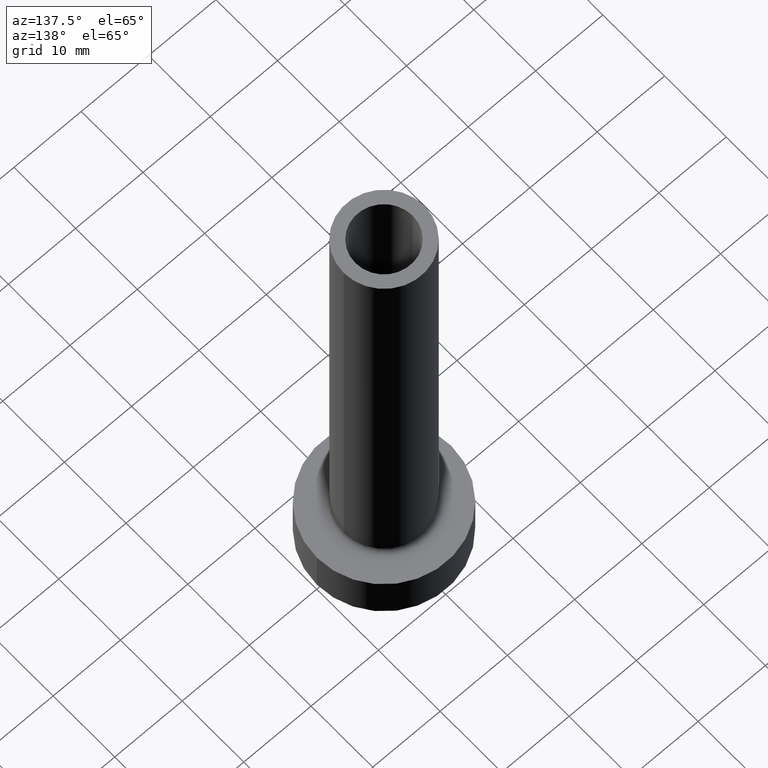
[diagram: clean part render]
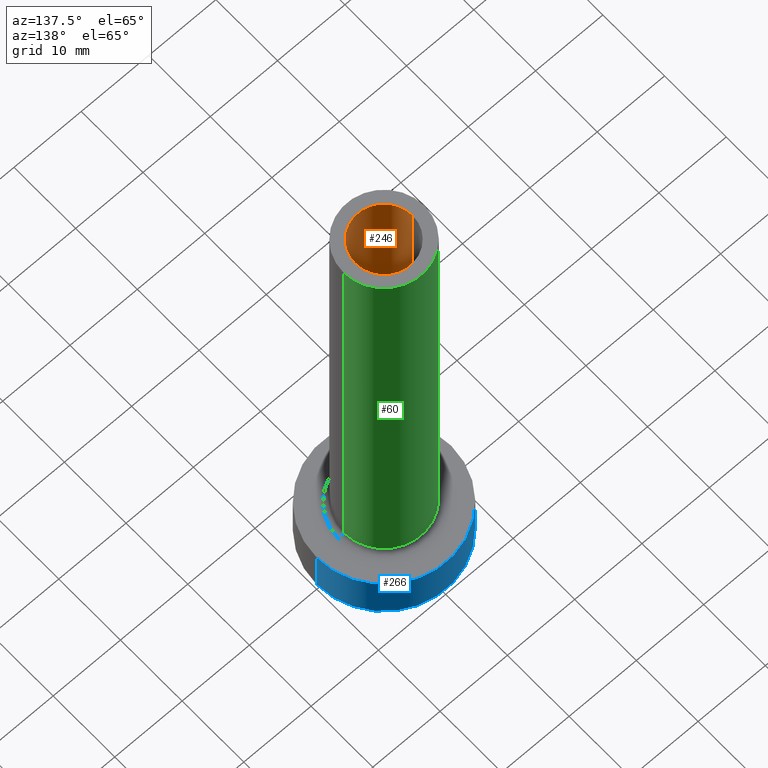
[diagram: same view with three faces highlighted in distinct colors, each labeled with its STEP entity id]
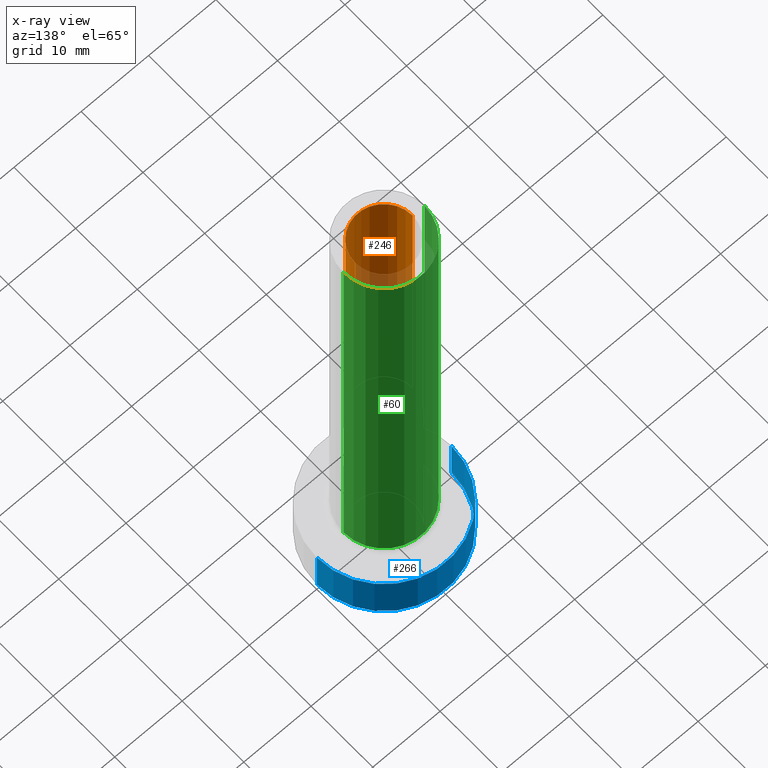
[diagram: x-ray of the same camera — body ghosted, the three highlighted faces saturated]
A machine part, auxiliary view with three faces highlighted in distinct colors.
The next image is the same camera in x-ray (body ghosted, the three faces saturated) — at least one of them is partly hidden behind the body in this view.
Their STEP definitions:

[orange] entity #246 — the highlighted cylindrical surface (partial cylindrical patch) has radius 4.25 mm, axis along (0, 0, -1).
#3 = EDGE_LOOP ( 'NONE', ( #178, #320, #31, #36 ) ) ;
#14 = DIRECTION ( 'NONE',  ( 0.000000000000000000, 0.000000000000000000, -1.000000000000000000 ) ) ;
#21 = CARTESIAN_POINT ( 'NONE',  ( 0.000000000000000000, 0.000000000000000000, 75.00000000000001421 ) ) ;
#31 = ORIENTED_EDGE ( 'NONE', *, *, #69, .F. ) ;
#36 = ORIENTED_EDGE ( 'NONE', *, *, #452, .F. ) ;
#48 = CARTESIAN_POINT ( 'NONE',  ( 4.250000000000000000, 5.204748896376249713E-16, 30.00000000000001421 ) ) ;
#51 = LINE ( 'NONE', #196, #449 ) ;
#62 = DIRECTION ( 'NONE',  ( -1.000000000000000000, 0.000000000000000000, 0.000000000000000000 ) ) ;
#65 = AXIS2_PLACEMENT_3D ( 'NONE', #202, #419, #381 ) ;
#69 = EDGE_CURVE ( 'NONE', #141, #186, #206, .T. ) ;
#94 = CYLINDRICAL_SURFACE ( 'NONE', #277, 4.250000000000000000 ) ;
#101 = VECTOR ( 'NONE', #211, 1000.000000000000000 ) ;
#117 = CARTESIAN_POINT ( 'NONE',  ( 4.250000000000000000, 5.204748896376249713E-16, 75.00000000000001421 ) ) ;
#120 = VERTEX_POINT ( 'NONE', #375 ) ;
#141 = VERTEX_POINT ( 'NONE', #226 ) ;
#163 = DIRECTION ( 'NONE',  ( 0.000000000000000000, 0.000000000000000000, -1.000000000000000000 ) ) ;
#167 = DIRECTION ( 'NONE',  ( 1.000000000000000000, 0.000000000000000000, 0.000000000000000000 ) ) ;
#177 = EDGE_CURVE ( 'NONE', #262, #186, #51, .T. ) ;
#178 = ORIENTED_EDGE ( 'NONE', *, *, #242, .T. ) ;
#186 = VERTEX_POINT ( 'NONE', #48 ) ;
#196 = CARTESIAN_POINT ( 'NONE',  ( 4.250000000000000000, 5.204748896376249713E-16, 75.00000000000001421 ) ) ;
#199 = CARTESIAN_POINT ( 'NONE',  ( 0.000000000000000000, 0.000000000000000000, 75.00000000000001421 ) ) ;
#201 = AXIS2_PLACEMENT_3D ( 'NONE', #21, #280, #167 ) ;
#202 = CARTESIAN_POINT ( 'NONE',  ( 0.000000000000000000, 0.000000000000000000, 30.00000000000001421 ) ) ;
#206 = CIRCLE ( 'NONE', #65, 4.250000000000000000 ) ;
#211 = DIRECTION ( 'NONE',  ( 0.000000000000000000, 0.000000000000000000, -1.000000000000000000 ) ) ;
#226 = CARTESIAN_POINT ( 'NONE',  ( -4.250000000000000000, 0.000000000000000000, 30.00000000000001421 ) ) ;
#242 = EDGE_CURVE ( 'NONE', #120, #262, #422, .T. ) ;
#246 = ADVANCED_FACE ( 'NONE', ( #380 ), #94, .F. ) ;
#262 = VERTEX_POINT ( 'NONE', #117 ) ;
#277 = AXIS2_PLACEMENT_3D ( 'NONE', #199, #14, #62 ) ;
#280 = DIRECTION ( 'NONE',  ( 0.000000000000000000, 0.000000000000000000, 1.000000000000000000 ) ) ;
#320 = ORIENTED_EDGE ( 'NONE', *, *, #177, .T. ) ;
#375 = CARTESIAN_POINT ( 'NONE',  ( -4.250000000000000000, 0.000000000000000000, 75.00000000000001421 ) ) ;
#380 = FACE_OUTER_BOUND ( 'NONE', #3, .T. ) ;
#381 = DIRECTION ( 'NONE',  ( 1.000000000000000000, 0.000000000000000000, 0.000000000000000000 ) ) ;
#413 = CARTESIAN_POINT ( 'NONE',  ( -4.250000000000000000, 0.000000000000000000, 75.00000000000001421 ) ) ;
#419 = DIRECTION ( 'NONE',  ( 0.000000000000000000, 0.000000000000000000, 1.000000000000000000 ) ) ;
#422 = CIRCLE ( 'NONE', #201, 4.250000000000000000 ) ;
#449 = VECTOR ( 'NONE', #163, 1000.000000000000000 ) ;
#452 = EDGE_CURVE ( 'NONE', #120, #141, #454, .T. ) ;
#454 = LINE ( 'NONE', #413, #101 ) ;

[blue] entity #266 — the highlighted cylindrical surface (partial cylindrical patch) has radius 10 mm, axis along (-0, -0, -1).
#16 = EDGE_CURVE ( 'NONE', #368, #27, #338, .T. ) ;
#27 = VERTEX_POINT ( 'NONE', #420 ) ;
#43 = ORIENTED_EDGE ( 'NONE', *, *, #310, .T. ) ;
#46 = ORIENTED_EDGE ( 'NONE', *, *, #210, .F. ) ;
#63 = DIRECTION ( 'NONE',  ( 0.000000000000000000, 0.000000000000000000, 1.000000000000000000 ) ) ;
#80 = EDGE_LOOP ( 'NONE', ( #83, #222, #43, #46 ) ) ;
#83 = ORIENTED_EDGE ( 'NONE', *, *, #16, .F. ) ;
#84 = LINE ( 'NONE', #401, #122 ) ;
#93 = DIRECTION ( 'NONE',  ( -0.000000000000000000, -0.000000000000000000, -1.000000000000000000 ) ) ;
#114 = CARTESIAN_POINT ( 'NONE',  ( 10.00000000000000000, 1.224646799147353256E-15, 7.000000000000000000 ) ) ;
#116 = VERTEX_POINT ( 'NONE', #372 ) ;
#122 = VECTOR ( 'NONE', #304, 1000.000000000000000 ) ;
#125 = CARTESIAN_POINT ( 'NONE',  ( -10.00000000000000000, 0.000000000000000000, 7.000000000000000000 ) ) ;
#129 = LINE ( 'NONE', #125, #264 ) ;
#160 = EDGE_CURVE ( 'NONE', #368, #253, #84, .T. ) ;
#187 = CARTESIAN_POINT ( 'NONE',  ( 0.000000000000000000, 0.000000000000000000, 0.000000000000000000 ) ) ;
#188 = FACE_OUTER_BOUND ( 'NONE', #80, .T. ) ;
#205 = DIRECTION ( 'NONE',  ( 1.000000000000000000, 0.000000000000000000, 0.000000000000000000 ) ) ;
#210 = EDGE_CURVE ( 'NONE', #27, #116, #129, .T. ) ;
#222 = ORIENTED_EDGE ( 'NONE', *, *, #160, .T. ) ;
#227 = DIRECTION ( 'NONE',  ( 0.000000000000000000, 0.000000000000000000, 1.000000000000000000 ) ) ;
#236 = DIRECTION ( 'NONE',  ( -1.000000000000000000, 0.000000000000000000, 0.000000000000000000 ) ) ;
#241 = CIRCLE ( 'NONE', #340, 10.00000000000000000 ) ;
#253 = VERTEX_POINT ( 'NONE', #390 ) ;
#264 = VECTOR ( 'NONE', #409, 1000.000000000000000 ) ;
#266 = ADVANCED_FACE ( 'NONE', ( #188 ), #403, .T. ) ;
#304 = DIRECTION ( 'NONE',  ( -0.000000000000000000, -0.000000000000000000, -1.000000000000000000 ) ) ;
#310 = EDGE_CURVE ( 'NONE', #253, #116, #241, .T. ) ;
#335 = AXIS2_PLACEMENT_3D ( 'NONE', #371, #93, #236 ) ;
#338 = CIRCLE ( 'NONE', #427, 10.00000000000000000 ) ;
#340 = AXIS2_PLACEMENT_3D ( 'NONE', #187, #227, #369 ) ;
#368 = VERTEX_POINT ( 'NONE', #114 ) ;
#369 = DIRECTION ( 'NONE',  ( 1.000000000000000000, 0.000000000000000000, 0.000000000000000000 ) ) ;
#371 = CARTESIAN_POINT ( 'NONE',  ( 0.000000000000000000, 0.000000000000000000, 7.000000000000000000 ) ) ;
#372 = CARTESIAN_POINT ( 'NONE',  ( -10.00000000000000000, 0.000000000000000000, 0.000000000000000000 ) ) ;
#390 = CARTESIAN_POINT ( 'NONE',  ( 10.00000000000000000, 1.224646799147353256E-15, 0.000000000000000000 ) ) ;
#401 = CARTESIAN_POINT ( 'NONE',  ( 10.00000000000000000, 1.224646799147353256E-15, 7.000000000000000000 ) ) ;
#403 = CYLINDRICAL_SURFACE ( 'NONE', #335, 10.00000000000000000 ) ;
#409 = DIRECTION ( 'NONE',  ( -0.000000000000000000, -0.000000000000000000, -1.000000000000000000 ) ) ;
#412 = CARTESIAN_POINT ( 'NONE',  ( 0.000000000000000000, 0.000000000000000000, 7.000000000000000000 ) ) ;
#420 = CARTESIAN_POINT ( 'NONE',  ( -10.00000000000000000, 0.000000000000000000, 7.000000000000000000 ) ) ;
#427 = AXIS2_PLACEMENT_3D ( 'NONE', #412, #63, #205 ) ;

[green] entity #60 — the highlighted cylindrical surface (partial cylindrical patch) has radius 6 mm, axis along (-0, -0, -1).
#35 = VERTEX_POINT ( 'NONE', #107 ) ;
#49 = CARTESIAN_POINT ( 'NONE',  ( -6.000000000000000888, 0.000000000000000000, 7.699999999999998401 ) ) ;
#53 = EDGE_CURVE ( 'NONE', #35, #150, #275, .T. ) ;
#55 = CARTESIAN_POINT ( 'NONE',  ( -6.000000000000000888, 0.000000000000000000, 75.00000000000001421 ) ) ;
#60 = ADVANCED_FACE ( 'NONE', ( #350 ), #240, .T. ) ;
#78 = DIRECTION ( 'NONE',  ( 0.000000000000000000, 0.000000000000000000, 1.000000000000000000 ) ) ;
#95 = DIRECTION ( 'NONE',  ( -0.000000000000000000, -0.000000000000000000, -1.000000000000000000 ) ) ;
#107 = CARTESIAN_POINT ( 'NONE',  ( 6.000000000000000888, 7.347880794884120722E-16, 75.00000000000001421 ) ) ;
#118 = EDGE_CURVE ( 'NONE', #150, #288, #306, .T. ) ;
#134 = CARTESIAN_POINT ( 'NONE',  ( 0.000000000000000000, 0.000000000000000000, 75.00000000000001421 ) ) ;
#150 = VERTEX_POINT ( 'NONE', #55 ) ;
#173 = CARTESIAN_POINT ( 'NONE',  ( 0.000000000000000000, 0.000000000000000000, 7.699999999999998401 ) ) ;
#175 = CARTESIAN_POINT ( 'NONE',  ( 0.000000000000000000, 0.000000000000000000, 75.00000000000001421 ) ) ;
#176 = ORIENTED_EDGE ( 'NONE', *, *, #330, .T. ) ;
#209 = DIRECTION ( 'NONE',  ( 1.000000000000000000, 0.000000000000000000, 0.000000000000000000 ) ) ;
#216 = ORIENTED_EDGE ( 'NONE', *, *, #118, .F. ) ;
#240 = CYLINDRICAL_SURFACE ( 'NONE', #271, 6.000000000000000888 ) ;
#255 = EDGE_LOOP ( 'NONE', ( #425, #362, #176, #216 ) ) ;
#258 = DIRECTION ( 'NONE',  ( 1.000000000000000000, 0.000000000000000000, 0.000000000000000000 ) ) ;
#271 = AXIS2_PLACEMENT_3D ( 'NONE', #134, #414, #283 ) ;
#275 = CIRCLE ( 'NONE', #383, 6.000000000000000888 ) ;
#282 = DIRECTION ( 'NONE',  ( 0.000000000000000000, 0.000000000000000000, 1.000000000000000000 ) ) ;
#283 = DIRECTION ( 'NONE',  ( -1.000000000000000000, 0.000000000000000000, 0.000000000000000000 ) ) ;
#288 = VERTEX_POINT ( 'NONE', #49 ) ;
#290 = CARTESIAN_POINT ( 'NONE',  ( 6.000000000000000888, 7.347880794884120722E-16, 75.00000000000001421 ) ) ;
#306 = LINE ( 'NONE', #408, #385 ) ;
#308 = CIRCLE ( 'NONE', #400, 6.000000000000000888 ) ;
#324 = LINE ( 'NONE', #290, #457 ) ;
#328 = VERTEX_POINT ( 'NONE', #346 ) ;
#330 = EDGE_CURVE ( 'NONE', #328, #288, #308, .T. ) ;
#339 = EDGE_CURVE ( 'NONE', #35, #328, #324, .T. ) ;
#346 = CARTESIAN_POINT ( 'NONE',  ( 6.000000000000000888, 7.347880794884120722E-16, 7.699999999999998401 ) ) ;
#350 = FACE_OUTER_BOUND ( 'NONE', #255, .T. ) ;
#362 = ORIENTED_EDGE ( 'NONE', *, *, #339, .T. ) ;
#383 = AXIS2_PLACEMENT_3D ( 'NONE', #175, #78, #209 ) ;
#385 = VECTOR ( 'NONE', #95, 1000.000000000000000 ) ;
#400 = AXIS2_PLACEMENT_3D ( 'NONE', #173, #282, #258 ) ;
#408 = CARTESIAN_POINT ( 'NONE',  ( -6.000000000000000888, 0.000000000000000000, 75.00000000000001421 ) ) ;
#414 = DIRECTION ( 'NONE',  ( -0.000000000000000000, -0.000000000000000000, -1.000000000000000000 ) ) ;
#425 = ORIENTED_EDGE ( 'NONE', *, *, #53, .F. ) ;
#430 = DIRECTION ( 'NONE',  ( -0.000000000000000000, -0.000000000000000000, -1.000000000000000000 ) ) ;
#457 = VECTOR ( 'NONE', #430, 1000.000000000000000 ) ;